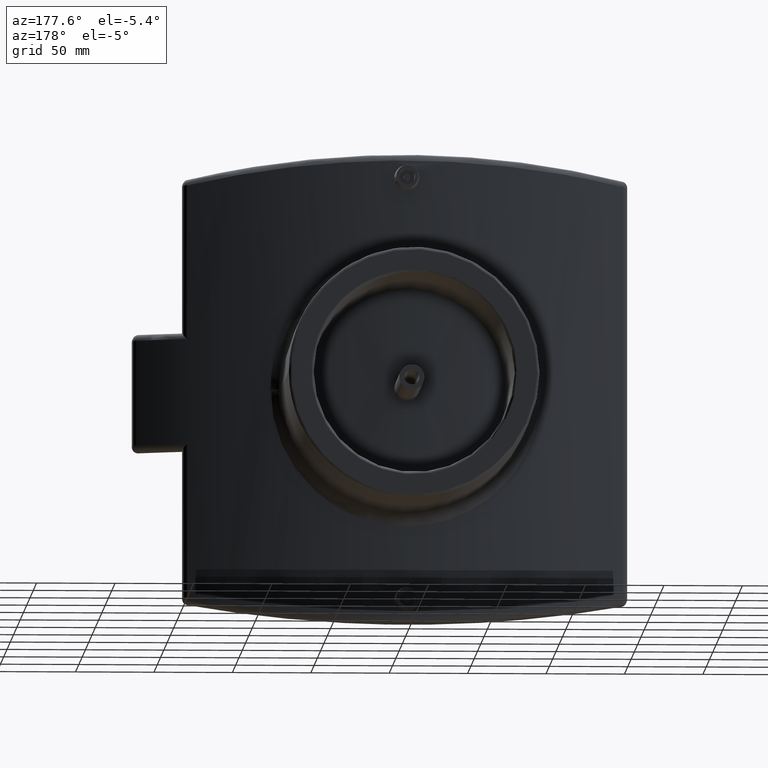
[diagram: clean part render]
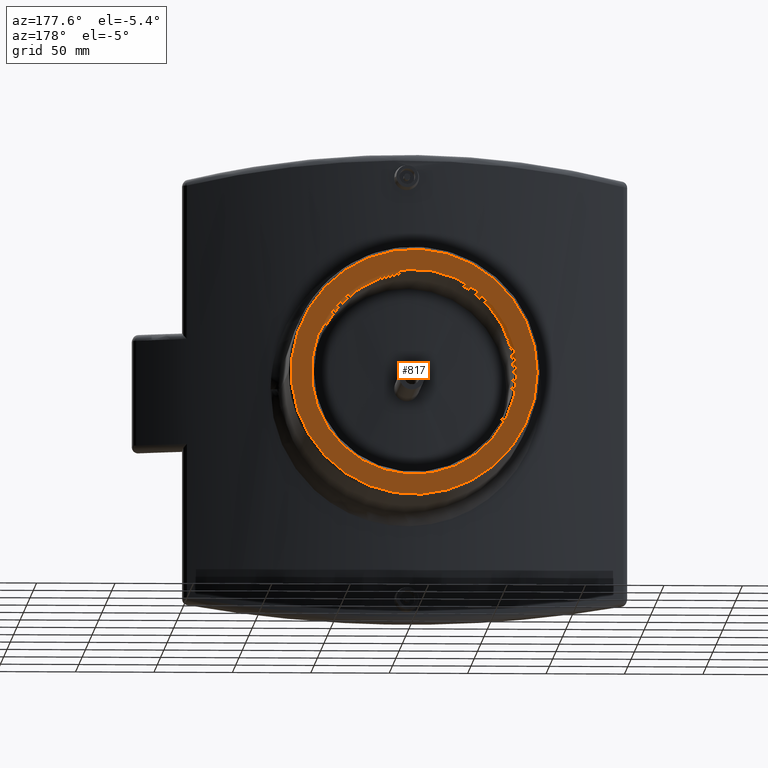
[diagram: same view with one face highlighted and labeled with its STEP entity id]
A machine part, auxiliary view. The second image highlights one B-rep face of the part: STEP entity #817.
In plain terms, the highlighted planar face has unit normal (0, 1, 0).
Its self-contained STEP definition (entity closure, byte-faithful):
#142=PLANE('',#887);
#157=FACE_BOUND('',#248,.T.);
#180=FACE_OUTER_BOUND('',#247,.T.);
#247=EDGE_LOOP('',(#584));
#248=EDGE_LOOP('',(#585));
#335=CIRCLE('',#886,65.6);
#336=CIRCLE('',#888,78.4);
#398=VERTEX_POINT('',#1292);
#399=VERTEX_POINT('',#1295);
#469=EDGE_CURVE('',#398,#398,#335,.T.);
#470=EDGE_CURVE('',#399,#399,#336,.T.);
#584=ORIENTED_EDGE('',*,*,#470,.F.);
#585=ORIENTED_EDGE('',*,*,#469,.F.);
#817=ADVANCED_FACE('',(#180,#157),#142,.T.);
#886=AXIS2_PLACEMENT_3D('',#1293,#1014,#1015);
#887=AXIS2_PLACEMENT_3D('',#1294,#1016,#1017);
#888=AXIS2_PLACEMENT_3D('',#1296,#1018,#1019);
#1014=DIRECTION('center_axis',(0.,1.,0.));
#1015=DIRECTION('ref_axis',(1.,0.,0.));
#1016=DIRECTION('center_axis',(0.,1.,0.));
#1017=DIRECTION('ref_axis',(0.,0.,1.));
#1018=DIRECTION('center_axis',(0.,-1.,0.));
#1019=DIRECTION('ref_axis',(1.,0.,0.));
#1292=CARTESIAN_POINT('',(-65.6,530.,8.03368300240664E-15));
#1293=CARTESIAN_POINT('Origin',(0.,530.,0.));
#1294=CARTESIAN_POINT('Origin',(3.77702593176532E-15,530.,1.48029736616688E-15));
#1295=CARTESIAN_POINT('',(-78.4,530.,-9.60123090531525E-15));
#1296=CARTESIAN_POINT('Origin',(0.,530.,0.));